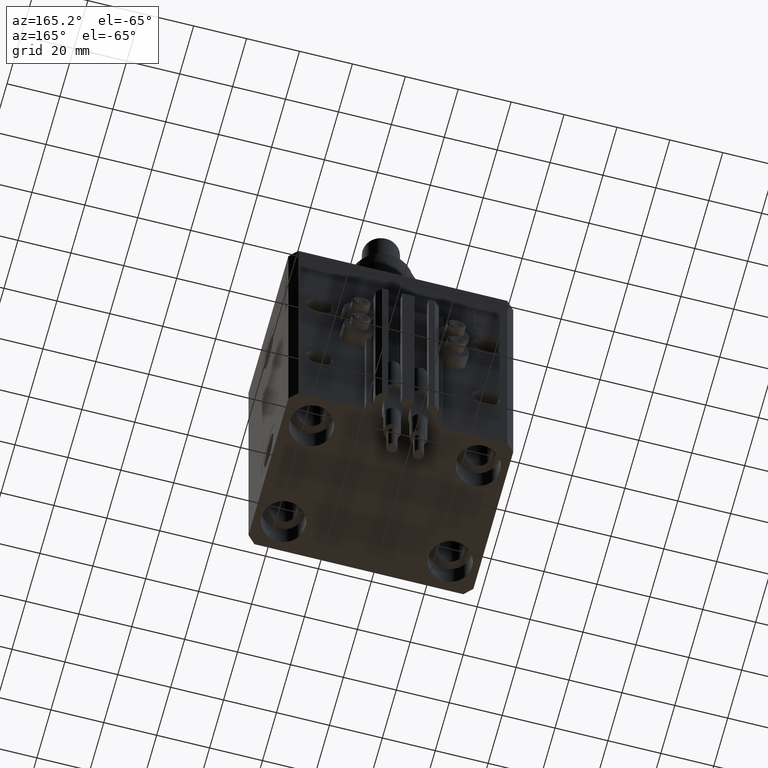
[diagram: clean part render]
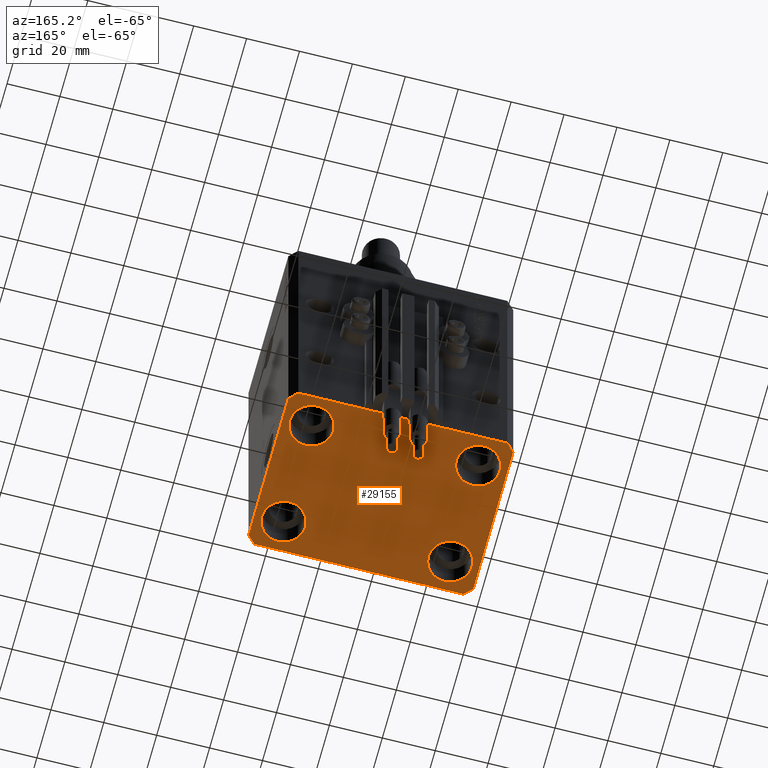
[diagram: same view with one face highlighted and labeled with its STEP entity id]
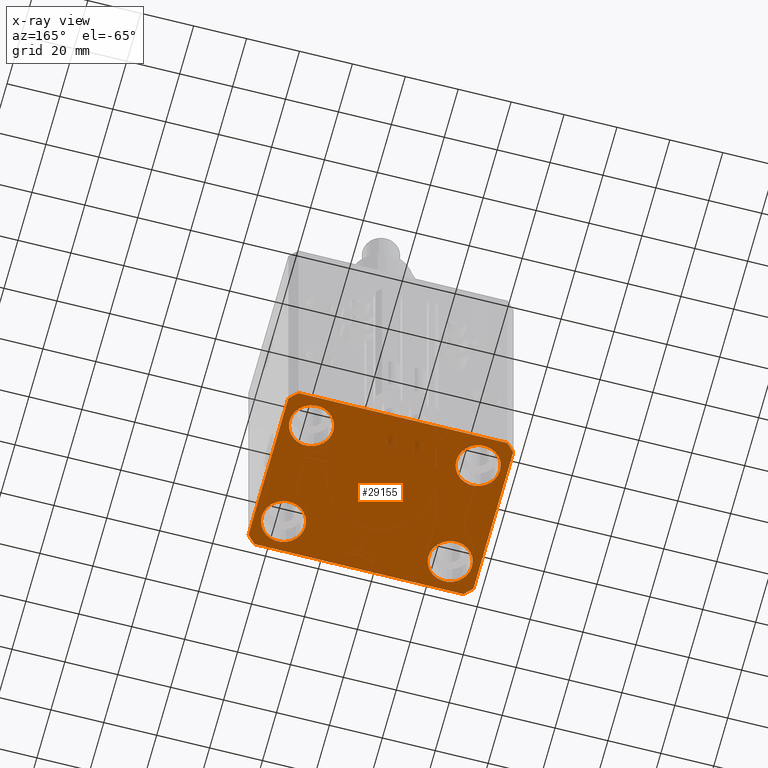
[diagram: x-ray of the same camera — body ghosted, the highlighted face saturated]
A machine part, auxiliary view. The second image highlights one B-rep face of the part: STEP entity #29155.
The next image is the same camera in x-ray: the body ghosted, the highlighted face saturated — about 1% of this face is hidden behind the body in this view.
In plain terms, the highlighted planar face has unit normal (0, 0, 1).
Its self-contained STEP definition (entity closure, byte-faithful):
#179 = VECTOR ( 'NONE', #26454, 1000.000000000000000 ) ;
#386 = CIRCLE ( 'NONE', #11310, 8.249999999999992895 ) ;
#832 = VERTEX_POINT ( 'NONE', #8464 ) ;
#1057 = VECTOR ( 'NONE', #4610, 1000.000000000000114 ) ;
#1062 = FACE_OUTER_BOUND ( 'NONE', #13156, .T. ) ;
#1207 = LINE ( 'NONE', #49119, #10890 ) ;
#1672 = ORIENTED_EDGE ( 'NONE', *, *, #40665, .T. ) ;
#1918 = EDGE_CURVE ( 'NONE', #7201, #10891, #1207, .T. ) ;
#2743 = CIRCLE ( 'NONE', #32023, 8.250000000000000000 ) ;
#3284 = LINE ( 'NONE', #26622, #12408 ) ;
#3971 = EDGE_CURVE ( 'NONE', #832, #40506, #47336, .T. ) ;
#4083 = CARTESIAN_POINT ( 'NONE',  ( -42.50000000000000000, 28.50000000000000000, -123.0000000000000000 ) ) ;
#4274 = CARTESIAN_POINT ( 'NONE',  ( -39.75000000000000000, -20.00000000000000000, -123.0000000000000000 ) ) ;
#4610 = DIRECTION ( 'NONE',  ( -0.7071067811865356934, 0.7071067811865594521, 0.000000000000000000 ) ) ;
#5305 = DIRECTION ( 'NONE',  ( 1.000000000000000000, 0.000000000000000000, 0.000000000000000000 ) ) ;
#5422 = ORIENTED_EDGE ( 'NONE', *, *, #10672, .T. ) ;
#6014 = CARTESIAN_POINT ( 'NONE',  ( -39.75000000000000000, 20.00000000000000000, -123.0000000000000000 ) ) ;
#6277 = CARTESIAN_POINT ( 'NONE',  ( -31.50000000000000000, -20.00000000000000000, -123.0000000000000000 ) ) ;
#6381 = ORIENTED_EDGE ( 'NONE', *, *, #43181, .T. ) ;
#7201 = VERTEX_POINT ( 'NONE', #42978 ) ;
#7469 = DIRECTION ( 'NONE',  ( 1.000000000000000000, 0.000000000000000000, 0.000000000000000000 ) ) ;
#8141 = CARTESIAN_POINT ( 'NONE',  ( 23.25000000000000355, -20.00000000000000000, -123.0000000000000000 ) ) ;
#8434 = VERTEX_POINT ( 'NONE', #26455 ) ;
#8464 = CARTESIAN_POINT ( 'NONE',  ( 39.50000000000000711, -31.50000000000000000, -123.0000000000000000 ) ) ;
#8652 = VERTEX_POINT ( 'NONE', #37136 ) ;
#9583 = EDGE_CURVE ( 'NONE', #40506, #8434, #17798, .T. ) ;
#9939 = ORIENTED_EDGE ( 'NONE', *, *, #41652, .F. ) ;
#10672 = EDGE_CURVE ( 'NONE', #23790, #33445, #13609, .T. ) ;
#10890 = VECTOR ( 'NONE', #33433, 1000.000000000000000 ) ;
#10891 = VERTEX_POINT ( 'NONE', #4083 ) ;
#11310 = AXIS2_PLACEMENT_3D ( 'NONE', #46419, #13951, #38322 ) ;
#11371 = CARTESIAN_POINT ( 'NONE',  ( 39.50000000000056843, 31.50000000000000000, -123.0000000000000000 ) ) ;
#12118 = VERTEX_POINT ( 'NONE', #25217 ) ;
#12296 = DIRECTION ( 'NONE',  ( 1.000000000000000000, 0.000000000000000000, 0.000000000000000000 ) ) ;
#12408 = VECTOR ( 'NONE', #7469, 1000.000000000000000 ) ;
#12848 = CARTESIAN_POINT ( 'NONE',  ( 42.50000000000000711, -28.50000000000000355, -123.0000000000000000 ) ) ;
#13111 = FACE_BOUND ( 'NONE', #50697, .T. ) ;
#13156 = EDGE_LOOP ( 'NONE', ( #28136, #44209, #30607, #16223, #31510, #28669, #9939, #23025 ) ) ;
#13609 = CIRCLE ( 'NONE', #50394, 8.250000000000000000 ) ;
#13951 = DIRECTION ( 'NONE',  ( -0.000000000000000000, -0.000000000000000000, 1.000000000000000000 ) ) ;
#14070 = CARTESIAN_POINT ( 'NONE',  ( -31.50000000000000000, -20.00000000000000000, -123.0000000000000000 ) ) ;
#14380 = EDGE_CURVE ( 'NONE', #29769, #7201, #20002, .T. ) ;
#16223 = ORIENTED_EDGE ( 'NONE', *, *, #3971, .F. ) ;
#16789 = EDGE_CURVE ( 'NONE', #49974, #19119, #37110, .T. ) ;
#17036 = DIRECTION ( 'NONE',  ( 0.000000000000000000, 0.000000000000000000, 1.000000000000000000 ) ) ;
#17247 = CARTESIAN_POINT ( 'NONE',  ( 39.74999999999999289, 20.00000000000001066, -123.0000000000000000 ) ) ;
#17531 = VECTOR ( 'NONE', #29591, 1000.000000000000000 ) ;
#17568 = CIRCLE ( 'NONE', #42661, 8.250000000000000000 ) ;
#17798 = LINE ( 'NONE', #42667, #179 ) ;
#17873 = CARTESIAN_POINT ( 'NONE',  ( -39.50000000000000711, -31.50000000000000000, -123.0000000000000000 ) ) ;
#18566 = AXIS2_PLACEMENT_3D ( 'NONE', #6277, #46848, #42677 ) ;
#18863 = CIRCLE ( 'NONE', #33082, 8.249999999999992895 ) ;
#19080 = DIRECTION ( 'NONE',  ( 1.000000000000000000, 0.000000000000000000, 0.000000000000000000 ) ) ;
#19119 = VERTEX_POINT ( 'NONE', #21084 ) ;
#19413 = CIRCLE ( 'NONE', #18566, 8.250000000000000000 ) ;
#20002 = LINE ( 'NONE', #11371, #31170 ) ;
#21084 = CARTESIAN_POINT ( 'NONE',  ( 39.74999999999999289, -20.00000000000000000, -123.0000000000000000 ) ) ;
#21242 = CARTESIAN_POINT ( 'NONE',  ( 0.000000000000000000, 0.000000000000000000, -123.0000000000000000 ) ) ;
#22058 = AXIS2_PLACEMENT_3D ( 'NONE', #51442, #31555, #47509 ) ;
#22223 = DIRECTION ( 'NONE',  ( 0.000000000000000000, -1.000000000000000000, 0.000000000000000000 ) ) ;
#23025 = ORIENTED_EDGE ( 'NONE', *, *, #1918, .F. ) ;
#23208 = VERTEX_POINT ( 'NONE', #43512 ) ;
#23790 = VERTEX_POINT ( 'NONE', #4274 ) ;
#23947 = EDGE_CURVE ( 'NONE', #12118, #48378, #18863, .T. ) ;
#24027 = EDGE_LOOP ( 'NONE', ( #42128, #34938 ) ) ;
#24051 = DIRECTION ( 'NONE',  ( -0.000000000000000000, -0.000000000000000000, 1.000000000000000000 ) ) ;
#24100 = CARTESIAN_POINT ( 'NONE',  ( 31.50000000000000000, 20.00000000000001066, -123.0000000000000000 ) ) ;
#25168 = FACE_BOUND ( 'NONE', #27633, .T. ) ;
#25217 = CARTESIAN_POINT ( 'NONE',  ( 23.25000000000000355, 20.00000000000001066, -123.0000000000000000 ) ) ;
#25662 = CARTESIAN_POINT ( 'NONE',  ( 39.50000000000056843, 31.50000000000000000, -123.0000000000000000 ) ) ;
#25778 = ORIENTED_EDGE ( 'NONE', *, *, #37089, .T. ) ;
#26454 = DIRECTION ( 'NONE',  ( 8.886653596232072440E-15, 1.000000000000000000, 0.000000000000000000 ) ) ;
#26455 = CARTESIAN_POINT ( 'NONE',  ( 42.50000000000051870, 28.49999999999995381, -123.0000000000000000 ) ) ;
#26622 = CARTESIAN_POINT ( 'NONE',  ( -39.50000000000000711, -31.50000000000000000, -123.0000000000000000 ) ) ;
#27633 = EDGE_LOOP ( 'NONE', ( #6381, #25778 ) ) ;
#28136 = ORIENTED_EDGE ( 'NONE', *, *, #14380, .F. ) ;
#28669 = ORIENTED_EDGE ( 'NONE', *, *, #36122, .F. ) ;
#29155 = ADVANCED_FACE ( 'NONE', ( #41125, #13111, #33294, #25168, #1062 ), #40358, .F. ) ;
#29232 = CARTESIAN_POINT ( 'NONE',  ( -31.50000000000000000, 20.00000000000000000, -123.0000000000000000 ) ) ;
#29591 = DIRECTION ( 'NONE',  ( 0.7071067811865471286, -0.7071067811865479058, 0.000000000000000000 ) ) ;
#29690 = EDGE_CURVE ( 'NONE', #48378, #12118, #41700, .T. ) ;
#29769 = VERTEX_POINT ( 'NONE', #25662 ) ;
#30134 = EDGE_CURVE ( 'NONE', #45846, #832, #3284, .T. ) ;
#30607 = ORIENTED_EDGE ( 'NONE', *, *, #9583, .F. ) ;
#31170 = VECTOR ( 'NONE', #35728, 1000.000000000000000 ) ;
#31381 = DIRECTION ( 'NONE',  ( 0.7071067811865483499, 0.7071067811865466846, 0.000000000000000000 ) ) ;
#31510 = ORIENTED_EDGE ( 'NONE', *, *, #30134, .F. ) ;
#31555 = DIRECTION ( 'NONE',  ( -0.000000000000000000, -0.000000000000000000, 1.000000000000000000 ) ) ;
#32023 = AXIS2_PLACEMENT_3D ( 'NONE', #29232, #33939, #49365 ) ;
#32400 = CARTESIAN_POINT ( 'NONE',  ( 42.50000000000051870, 28.49999999999995381, -123.0000000000000000 ) ) ;
#32836 = DIRECTION ( 'NONE',  ( -0.000000000000000000, -0.000000000000000000, 1.000000000000000000 ) ) ;
#33082 = AXIS2_PLACEMENT_3D ( 'NONE', #45125, #32836, #5305 ) ;
#33294 = FACE_BOUND ( 'NONE', #24027, .T. ) ;
#33433 = DIRECTION ( 'NONE',  ( -0.7071067811865471286, -0.7071067811865479058, 0.000000000000000000 ) ) ;
#33445 = VERTEX_POINT ( 'NONE', #45684 ) ;
#33939 = DIRECTION ( 'NONE',  ( -0.000000000000000000, -0.000000000000000000, 1.000000000000000000 ) ) ;
#34817 = CARTESIAN_POINT ( 'NONE',  ( -42.50000000000000000, -28.50000000000000000, -123.0000000000000000 ) ) ;
#34938 = ORIENTED_EDGE ( 'NONE', *, *, #29690, .T. ) ;
#35728 = DIRECTION ( 'NONE',  ( -1.000000000000000000, 0.000000000000000000, 0.000000000000000000 ) ) ;
#36122 = EDGE_CURVE ( 'NONE', #8652, #45846, #45554, .T. ) ;
#37089 = EDGE_CURVE ( 'NONE', #23208, #46183, #17568, .T. ) ;
#37110 = CIRCLE ( 'NONE', #22058, 8.249999999999992895 ) ;
#37136 = CARTESIAN_POINT ( 'NONE',  ( -42.50000000000000000, -28.50000000000000000, -123.0000000000000000 ) ) ;
#38322 = DIRECTION ( 'NONE',  ( 1.000000000000000000, 0.000000000000000000, 0.000000000000000000 ) ) ;
#38440 = DIRECTION ( 'NONE',  ( 1.000000000000000000, 0.000000000000000000, 0.000000000000000000 ) ) ;
#38698 = CARTESIAN_POINT ( 'NONE',  ( -42.50000000000000000, 28.50000000000000000, -123.0000000000000000 ) ) ;
#40358 = PLANE ( 'NONE',  #45016 ) ;
#40506 = VERTEX_POINT ( 'NONE', #12848 ) ;
#40665 = EDGE_CURVE ( 'NONE', #33445, #23790, #19413, .T. ) ;
#41125 = FACE_BOUND ( 'NONE', #48289, .T. ) ;
#41652 = EDGE_CURVE ( 'NONE', #10891, #8652, #42369, .T. ) ;
#41700 = CIRCLE ( 'NONE', #43371, 8.249999999999992895 ) ;
#42128 = ORIENTED_EDGE ( 'NONE', *, *, #23947, .T. ) ;
#42369 = LINE ( 'NONE', #38698, #44536 ) ;
#42657 = EDGE_CURVE ( 'NONE', #8434, #29769, #44413, .T. ) ;
#42661 = AXIS2_PLACEMENT_3D ( 'NONE', #43173, #24051, #19080 ) ;
#42667 = CARTESIAN_POINT ( 'NONE',  ( 42.50000000000000711, -28.50000000000000355, -123.0000000000000000 ) ) ;
#42677 = DIRECTION ( 'NONE',  ( 1.000000000000000000, 0.000000000000000000, 0.000000000000000000 ) ) ;
#42747 = VECTOR ( 'NONE', #31381, 1000.000000000000000 ) ;
#42978 = CARTESIAN_POINT ( 'NONE',  ( -39.50000000000000711, 31.50000000000000000, -123.0000000000000000 ) ) ;
#43173 = CARTESIAN_POINT ( 'NONE',  ( -31.50000000000000000, 20.00000000000000000, -123.0000000000000000 ) ) ;
#43181 = EDGE_CURVE ( 'NONE', #46183, #23208, #2743, .T. ) ;
#43371 = AXIS2_PLACEMENT_3D ( 'NONE', #24100, #48165, #12296 ) ;
#43512 = CARTESIAN_POINT ( 'NONE',  ( -23.25000000000000000, 20.00000000000000000, -123.0000000000000000 ) ) ;
#44209 = ORIENTED_EDGE ( 'NONE', *, *, #42657, .F. ) ;
#44413 = LINE ( 'NONE', #32400, #1057 ) ;
#44536 = VECTOR ( 'NONE', #22223, 1000.000000000000000 ) ;
#45016 = AXIS2_PLACEMENT_3D ( 'NONE', #21242, #17036, #48464 ) ;
#45125 = CARTESIAN_POINT ( 'NONE',  ( 31.50000000000000000, 20.00000000000001066, -123.0000000000000000 ) ) ;
#45554 = LINE ( 'NONE', #34817, #17531 ) ;
#45684 = CARTESIAN_POINT ( 'NONE',  ( -23.25000000000000000, -20.00000000000000000, -123.0000000000000000 ) ) ;
#45846 = VERTEX_POINT ( 'NONE', #17873 ) ;
#46183 = VERTEX_POINT ( 'NONE', #6014 ) ;
#46419 = CARTESIAN_POINT ( 'NONE',  ( 31.50000000000000000, -20.00000000000000000, -123.0000000000000000 ) ) ;
#46848 = DIRECTION ( 'NONE',  ( -0.000000000000000000, -0.000000000000000000, 1.000000000000000000 ) ) ;
#46991 = EDGE_CURVE ( 'NONE', #19119, #49974, #386, .T. ) ;
#47074 = CARTESIAN_POINT ( 'NONE',  ( 39.50000000000000711, -31.50000000000000000, -123.0000000000000000 ) ) ;
#47336 = LINE ( 'NONE', #47074, #42747 ) ;
#47509 = DIRECTION ( 'NONE',  ( 1.000000000000000000, 0.000000000000000000, 0.000000000000000000 ) ) ;
#47832 = ORIENTED_EDGE ( 'NONE', *, *, #16789, .T. ) ;
#48165 = DIRECTION ( 'NONE',  ( -0.000000000000000000, -0.000000000000000000, 1.000000000000000000 ) ) ;
#48289 = EDGE_LOOP ( 'NONE', ( #5422, #1672 ) ) ;
#48378 = VERTEX_POINT ( 'NONE', #17247 ) ;
#48464 = DIRECTION ( 'NONE',  ( 1.000000000000000000, 0.000000000000000000, -0.000000000000000000 ) ) ;
#49119 = CARTESIAN_POINT ( 'NONE',  ( -39.50000000000000711, 31.50000000000000000, -123.0000000000000000 ) ) ;
#49261 = ORIENTED_EDGE ( 'NONE', *, *, #46991, .T. ) ;
#49365 = DIRECTION ( 'NONE',  ( 1.000000000000000000, 0.000000000000000000, 0.000000000000000000 ) ) ;
#49947 = DIRECTION ( 'NONE',  ( -0.000000000000000000, -0.000000000000000000, 1.000000000000000000 ) ) ;
#49974 = VERTEX_POINT ( 'NONE', #8141 ) ;
#50394 = AXIS2_PLACEMENT_3D ( 'NONE', #14070, #49947, #38440 ) ;
#50697 = EDGE_LOOP ( 'NONE', ( #47832, #49261 ) ) ;
#51442 = CARTESIAN_POINT ( 'NONE',  ( 31.50000000000000000, -20.00000000000000000, -123.0000000000000000 ) ) ;